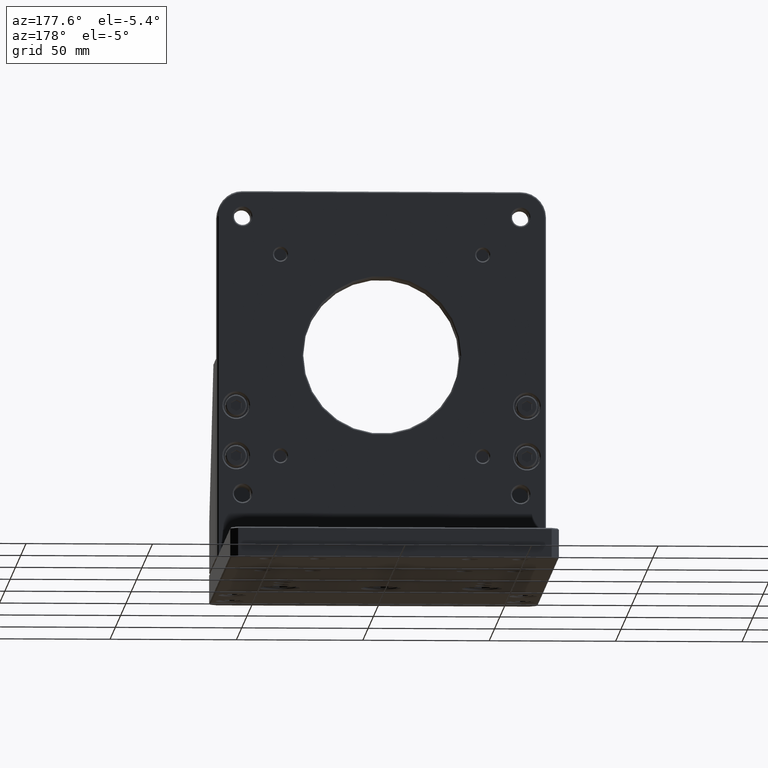
[diagram: clean part render]
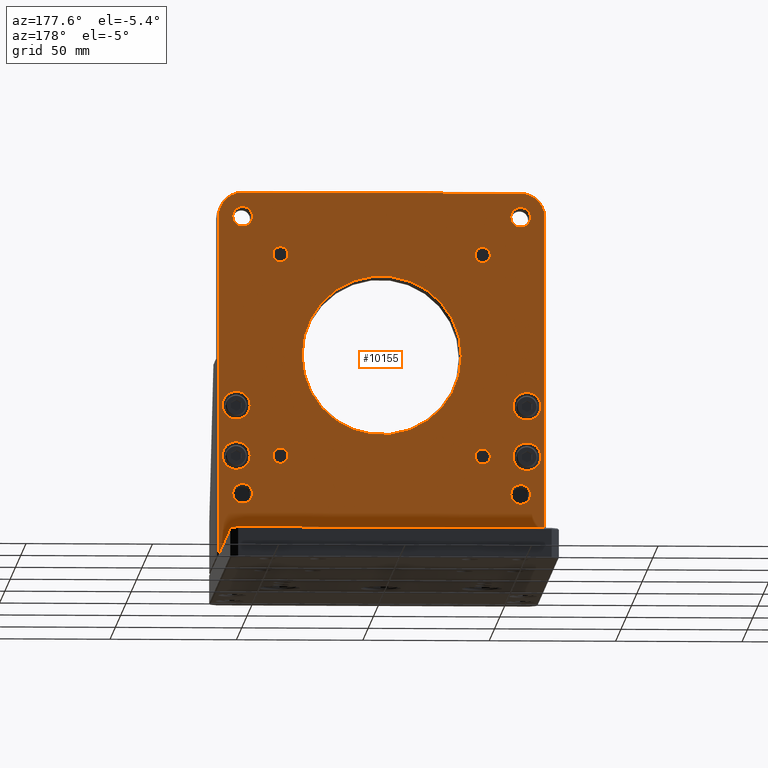
[diagram: same view with one face highlighted and labeled with its STEP entity id]
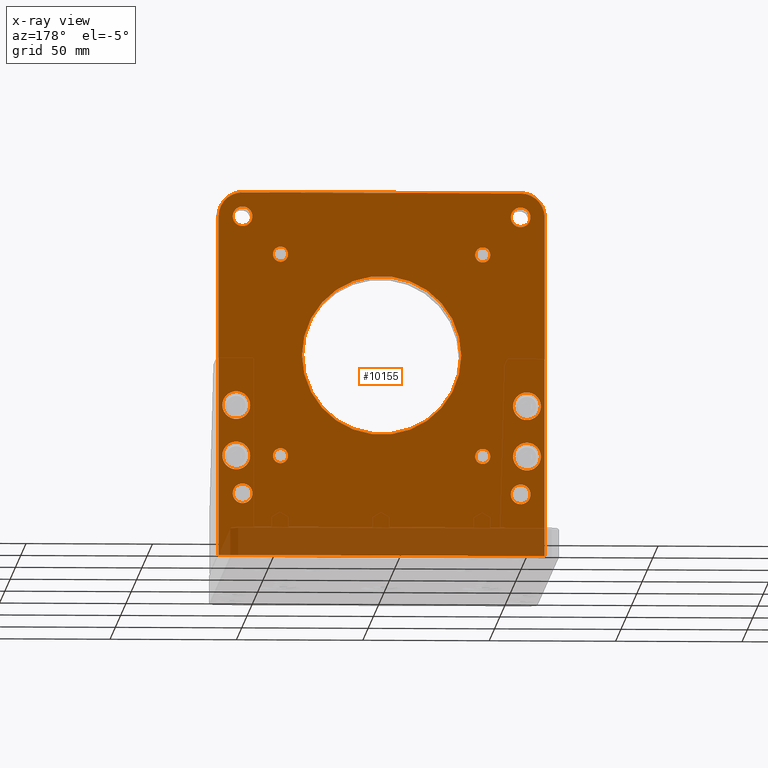
[diagram: x-ray of the same camera — body ghosted, the highlighted face saturated]
A machine part, auxiliary view. The second image highlights one B-rep face of the part: STEP entity #10155.
The next image is the same camera in x-ray: the body ghosted, the highlighted face saturated — about 10% of this face is hidden behind the body in this view.
In plain terms, the highlighted planar face has unit normal (0, -1, 0).
Its self-contained STEP definition (entity closure, byte-faithful):
#114 = FACE_BOUND ( 'NONE', #1489, .T. ) ;
#166 = EDGE_CURVE ( 'NONE', #2666, #1844, #4543, .T. ) ;
#218 = CIRCLE ( 'NONE', #11926, 3.899999999999979927 ) ;
#365 = CARTESIAN_POINT ( 'NONE',  ( 42.99999999999942446, -22.49999999999949551, 52.00000000000067502 ) ) ;
#384 = FACE_BOUND ( 'NONE', #13926, .T. ) ;
#388 = CARTESIAN_POINT ( 'NONE',  ( 57.49999999999913314, -22.49999999999932498, 72.00000000000088107 ) ) ;
#520 = CARTESIAN_POINT ( 'NONE',  ( 64.49999999999805311, -22.49999999999901235, 147.0000000000009663 ) ) ;
#588 = VERTEX_POINT ( 'NONE', #16888 ) ;
#654 = DIRECTION ( 'NONE',  ( 6.982962677686217801E-15, -1.000000000000000000, 3.491481338843133355E-15 ) ) ;
#666 = CARTESIAN_POINT ( 'NONE',  ( 39.99999999999828759, -22.49999999999923617, 132.0000000000006537 ) ) ;
#762 = AXIS2_PLACEMENT_3D ( 'NONE', #14537, #9334, #10507 ) ;
#804 = EDGE_LOOP ( 'NONE', ( #7208, #6903 ) ) ;
#851 = DIRECTION ( 'NONE',  ( 6.982962677686217801E-15, -1.000000000000000000, 3.491481338843133355E-15 ) ) ;
#1033 = ORIENTED_EDGE ( 'NONE', *, *, #3305, .T. ) ;
#1138 = CIRCLE ( 'NONE', #1727, 3.000000000000030198 ) ;
#1199 = AXIS2_PLACEMENT_3D ( 'NONE', #13154, #654, #8868 ) ;
#1227 = VERTEX_POINT ( 'NONE', #4390 ) ;
#1380 = FACE_BOUND ( 'NONE', #3524, .T. ) ;
#1383 = CARTESIAN_POINT ( 'NONE',  ( -64.50000000000100897, -22.50000000000013500, 84.49999999999918998 ) ) ;
#1423 = CARTESIAN_POINT ( 'NONE',  ( 58.89999999999813696, -22.49999999999905498, 147.0000000000009095 ) ) ;
#1489 = EDGE_LOOP ( 'NONE', ( #6241, #8145 ) ) ;
#1508 = LINE ( 'NONE', #9556, #4870 ) ;
#1654 = EDGE_CURVE ( 'NONE', #13224, #16976, #15458, .T. ) ;
#1727 = AXIS2_PLACEMENT_3D ( 'NONE', #16619, #3111, #4364 ) ;
#1797 = CARTESIAN_POINT ( 'NONE',  ( 51.09999999999965326, -22.49999999999949196, 37.00000000000078160 ) ) ;
#1835 = DIRECTION ( 'NONE',  ( 6.982962677686217801E-15, -1.000000000000000000, 3.491481338843133355E-15 ) ) ;
#1844 = VERTEX_POINT ( 'NONE', #2055 ) ;
#1899 = DIRECTION ( 'NONE',  ( 6.982962677686217801E-15, -1.000000000000000000, 3.491481338843133355E-15 ) ) ;
#1954 = CARTESIAN_POINT ( 'NONE',  ( 36.99999999999825917, -22.49999999999925748, 132.0000000000005969 ) ) ;
#2030 = CARTESIAN_POINT ( 'NONE',  ( 54.99999999999808864, -22.49999999999908340, 147.0000000000008242 ) ) ;
#2055 = CARTESIAN_POINT ( 'NONE',  ( -52.00000000000055422, -22.50000000000016342, 51.99999999999935341 ) ) ;
#2093 = DIRECTION ( 'NONE',  ( 1.000000000000000000, 6.938893903907228378E-15, 1.409807015397024218E-14 ) ) ;
#2113 = CARTESIAN_POINT ( 'NONE',  ( -55.00000000000191136, -22.49999999999985079, 146.9999999999992895 ) ) ;
#2161 = CARTESIAN_POINT ( 'NONE',  ( -1.145495027637149810E-12, -22.49999999999965894, 92.00000000000008527 ) ) ;
#2192 = CARTESIAN_POINT ( 'NONE',  ( -51.10000000000186304, -22.49999999999982236, 146.9999999999993747 ) ) ;
#2269 = DIRECTION ( 'NONE',  ( 6.982962677686217801E-15, -1.000000000000000000, 3.491481338843133355E-15 ) ) ;
#2288 = DIRECTION ( 'NONE',  ( -6.982962677686217801E-15, 1.000000000000000000, -3.491481338843133355E-15 ) ) ;
#2291 = CARTESIAN_POINT ( 'NONE',  ( 62.99999999999944578, -22.49999999999935696, 52.00000000000095923 ) ) ;
#2467 = DIRECTION ( 'NONE',  ( 6.982962677686217801E-15, -1.000000000000000000, 3.491481338843133355E-15 ) ) ;
#2601 = ORIENTED_EDGE ( 'NONE', *, *, #17238, .T. ) ;
#2666 = VERTEX_POINT ( 'NONE', #3106 ) ;
#2735 = VERTEX_POINT ( 'NONE', #7480 ) ;
#2786 = ORIENTED_EDGE ( 'NONE', *, *, #9286, .T. ) ;
#2816 = PLANE ( 'NONE',  #6758 ) ;
#2818 = AXIS2_PLACEMENT_3D ( 'NONE', #6804, #17385, #7972 ) ;
#2830 = AXIS2_PLACEMENT_3D ( 'NONE', #2030, #2288, #15953 ) ;
#2848 = CARTESIAN_POINT ( 'NONE',  ( 54.99999999999811706, -22.49999999999908340, 147.0000000000008527 ) ) ;
#2849 = EDGE_CURVE ( 'NONE', #2735, #3883, #11819, .T. ) ;
#2862 = CIRCLE ( 'NONE', #17152, 31.50000000000000000 ) ;
#2865 = CIRCLE ( 'NONE', #11710, 5.500000000000032863 ) ;
#2914 = DIRECTION ( 'NONE',  ( 6.982962677686217801E-15, -1.000000000000000000, 3.491481338843133355E-15 ) ) ;
#2950 = EDGE_CURVE ( 'NONE', #9595, #13612, #14230, .T. ) ;
#2989 = ORIENTED_EDGE ( 'NONE', *, *, #6050, .T. ) ;
#3083 = DIRECTION ( 'NONE',  ( 1.000000000000000000, 6.938893903907158169E-15, 1.387778780781431634E-14 ) ) ;
#3106 = CARTESIAN_POINT ( 'NONE',  ( -63.00000000000062528, -22.50000000000023803, 51.99999999999919709 ) ) ;
#3111 = DIRECTION ( 'NONE',  ( 6.982962677686217801E-15, -1.000000000000000000, 3.491481338843133355E-15 ) ) ;
#3169 = AXIS2_PLACEMENT_3D ( 'NONE', #11203, #16675, #3083 ) ;
#3238 = EDGE_LOOP ( 'NONE', ( #16460, #9053, #10615, #10747, #15604, #3388 ) ) ;
#3305 = EDGE_CURVE ( 'NONE', #17536, #12856, #13662, .T. ) ;
#3388 = ORIENTED_EDGE ( 'NONE', *, *, #15014, .T. ) ;
#3495 = EDGE_CURVE ( 'NONE', #14064, #11530, #9659, .T. ) ;
#3524 = EDGE_LOOP ( 'NONE', ( #5831, #1033 ) ) ;
#3591 = EDGE_CURVE ( 'NONE', #11889, #6823, #9101, .T. ) ;
#3663 = DIRECTION ( 'NONE',  ( 1.000000000000000000, 6.938893903907186568E-15, 1.387778780781437314E-14 ) ) ;
#3730 = EDGE_CURVE ( 'NONE', #7294, #14353, #8494, .T. ) ;
#3883 = VERTEX_POINT ( 'NONE', #1954 ) ;
#3889 = CARTESIAN_POINT ( 'NONE',  ( 51.09999999999809717, -22.49999999999911182, 147.0000000000007958 ) ) ;
#3918 = AXIS2_PLACEMENT_3D ( 'NONE', #5985, #11246, #15285 ) ;
#3965 = ORIENTED_EDGE ( 'NONE', *, *, #166, .T. ) ;
#4105 = VERTEX_POINT ( 'NONE', #5328 ) ;
#4240 = CIRCLE ( 'NONE', #7381, 3.000000000000030198 ) ;
#4242 = LINE ( 'NONE', #1383, #6618 ) ;
#4269 = AXIS2_PLACEMENT_3D ( 'NONE', #5364, #17704, #6784 ) ;
#4333 = FACE_BOUND ( 'NONE', #15704, .T. ) ;
#4364 = DIRECTION ( 'NONE',  ( 1.000000000000000000, 6.938893903907158169E-15, 1.850371707708575512E-14 ) ) ;
#4390 = CARTESIAN_POINT ( 'NONE',  ( -43.00000000000062528, -22.50000000000009592, 51.99999999999947420 ) ) ;
#4428 = CARTESIAN_POINT ( 'NONE',  ( 54.99999999999964473, -22.49999999999946354, 37.00000000000083844 ) ) ;
#4543 = CIRCLE ( 'NONE', #6246, 5.500000000000032863 ) ;
#4725 = EDGE_LOOP ( 'NONE', ( #15612, #6195 ) ) ;
#4771 = CARTESIAN_POINT ( 'NONE',  ( -52.00000000000084555, -22.50000000000009237, 71.99999999999936051 ) ) ;
#4777 = DIRECTION ( 'NONE',  ( 1.000000000000000000, 7.116814260417643269E-15, 1.423362852083528654E-14 ) ) ;
#4870 = VECTOR ( 'NONE', #6950, 1000.000000000000000 ) ;
#5125 = DIRECTION ( 'NONE',  ( 6.982962677686217801E-15, -1.000000000000000000, 3.491481338843133355E-15 ) ) ;
#5131 = CIRCLE ( 'NONE', #4269, 3.899999999999987033 ) ;
#5158 = CIRCLE ( 'NONE', #3169, 3.000000000000030198 ) ;
#5328 = CARTESIAN_POINT ( 'NONE',  ( -43.00000000000174794, -22.49999999999981881, 131.9999999999994884 ) ) ;
#5344 = DIRECTION ( 'NONE',  ( 1.000000000000000000, 6.982962677686266711E-15, 1.396592535537253342E-14 ) ) ;
#5364 = CARTESIAN_POINT ( 'NONE',  ( 54.99999999999964473, -22.49999999999946354, 37.00000000000083844 ) ) ;
#5391 = AXIS2_PLACEMENT_3D ( 'NONE', #11005, #5740, #16471 ) ;
#5413 = DIRECTION ( 'NONE',  ( 1.000000000000000000, 6.938893903907158169E-15, 1.850371707708575512E-14 ) ) ;
#5545 = EDGE_LOOP ( 'NONE', ( #17649, #2989 ) ) ;
#5671 = DIRECTION ( 'NONE',  ( 1.000000000000000000, 6.938893903907186568E-15, 1.513940488125204428E-14 ) ) ;
#5698 = CARTESIAN_POINT ( 'NONE',  ( -37.00000000000168399, -22.49999999999977618, 131.9999999999996021 ) ) ;
#5719 = AXIS2_PLACEMENT_3D ( 'NONE', #8087, #2467, #8164 ) ;
#5740 = DIRECTION ( 'NONE',  ( 6.982962677686217801E-15, -1.000000000000000000, 3.491481338843133355E-15 ) ) ;
#5824 = DIRECTION ( 'NONE',  ( 1.000000000000000000, 6.938893903907186568E-15, 1.513940488125204428E-14 ) ) ;
#5831 = ORIENTED_EDGE ( 'NONE', *, *, #7278, .T. ) ;
#5942 = AXIS2_PLACEMENT_3D ( 'NONE', #4428, #8436, #7282 ) ;
#5985 = CARTESIAN_POINT ( 'NONE',  ( -55.00000000000034817, -22.50000000000023448, 36.99999999999931788 ) ) ;
#6014 = CIRCLE ( 'NONE', #10290, 5.500000000000039968 ) ;
#6050 = EDGE_CURVE ( 'NONE', #12757, #1227, #7485, .T. ) ;
#6124 = DIRECTION ( 'NONE',  ( 1.000000000000000000, 6.938893903907158169E-15, 1.850371707708575512E-14 ) ) ;
#6195 = ORIENTED_EDGE ( 'NONE', *, *, #16661, .T. ) ;
#6241 = ORIENTED_EDGE ( 'NONE', *, *, #10972, .T. ) ;
#6246 = AXIS2_PLACEMENT_3D ( 'NONE', #14220, #10283, #3663 ) ;
#6324 = CARTESIAN_POINT ( 'NONE',  ( 57.49999999999940314, -22.49999999999939604, 52.00000000000088818 ) ) ;
#6338 = DIRECTION ( 'NONE',  ( 6.982962677686217801E-15, -1.000000000000000000, 3.491481338843133355E-15 ) ) ;
#6446 = CARTESIAN_POINT ( 'NONE',  ( 54.99999999999811706, -22.49999999999908340, 147.0000000000008527 ) ) ;
#6548 = ORIENTED_EDGE ( 'NONE', *, *, #8627, .T. ) ;
#6575 = AXIS2_PLACEMENT_3D ( 'NONE', #2113, #11738, #7547 ) ;
#6583 = DIRECTION ( 'NONE',  ( 6.982962677686217801E-15, -1.000000000000000000, 3.491481338843133355E-15 ) ) ;
#6586 = ORIENTED_EDGE ( 'NONE', *, *, #8245, .T. ) ;
#6618 = VECTOR ( 'NONE', #9604, 1000.000000000000000 ) ;
#6701 = VERTEX_POINT ( 'NONE', #365 ) ;
#6758 = AXIS2_PLACEMENT_3D ( 'NONE', #8256, #6915, #15595 ) ;
#6784 = DIRECTION ( 'NONE',  ( 1.000000000000000000, 7.116814260417693756E-15, 1.423362852083538751E-14 ) ) ;
#6804 = CARTESIAN_POINT ( 'NONE',  ( -57.50000000000086686, -22.50000000000013145, 71.99999999999927525 ) ) ;
#6823 = VERTEX_POINT ( 'NONE', #8858 ) ;
#6825 = FACE_BOUND ( 'NONE', #11791, .T. ) ;
#6903 = ORIENTED_EDGE ( 'NONE', *, *, #7403, .T. ) ;
#6915 = DIRECTION ( 'NONE',  ( 6.982962677686217801E-15, -1.000000000000000000, 3.491481338843133355E-15 ) ) ;
#6950 = DIRECTION ( 'NONE',  ( -1.000000000000000000, -6.982962677686266711E-15, -1.396592535537253342E-14 ) ) ;
#7048 = VECTOR ( 'NONE', #5344, 1000.000000000000000 ) ;
#7183 = FACE_BOUND ( 'NONE', #4725, .T. ) ;
#7208 = ORIENTED_EDGE ( 'NONE', *, *, #16961, .T. ) ;
#7249 = CARTESIAN_POINT ( 'NONE',  ( 64.49999999999992895, -22.49999999999948486, 12.50000000000101075 ) ) ;
#7275 = CARTESIAN_POINT ( 'NONE',  ( 36.99999999999936762, -22.49999999999953815, 52.00000000000059686 ) ) ;
#7276 = DIRECTION ( 'NONE',  ( 1.000000000000000000, 6.938893903907158169E-15, 1.387778780781431634E-14 ) ) ;
#7278 = EDGE_CURVE ( 'NONE', #12856, #17536, #12003, .T. ) ;
#7282 = DIRECTION ( 'NONE',  ( 1.000000000000000000, 7.116814260417693756E-15, 1.423362852083538751E-14 ) ) ;
#7294 = VERTEX_POINT ( 'NONE', #3889 ) ;
#7381 = AXIS2_PLACEMENT_3D ( 'NONE', #9135, #5125, #14685 ) ;
#7403 = EDGE_CURVE ( 'NONE', #12037, #588, #7998, .T. ) ;
#7480 = CARTESIAN_POINT ( 'NONE',  ( 42.99999999999831601, -22.49999999999921485, 132.0000000000007105 ) ) ;
#7485 = CIRCLE ( 'NONE', #1199, 3.000000000000030198 ) ;
#7518 = EDGE_CURVE ( 'NONE', #1227, #12757, #5158, .T. ) ;
#7547 = DIRECTION ( 'NONE',  ( 1.000000000000000000, 6.938893903907248099E-15, 1.460819769243630996E-14 ) ) ;
#7565 = EDGE_CURVE ( 'NONE', #3883, #2735, #11988, .T. ) ;
#7606 = EDGE_CURVE ( 'NONE', #17163, #9315, #8002, .T. ) ;
#7622 = AXIS2_PLACEMENT_3D ( 'NONE', #14072, #1835, #7276 ) ;
#7673 = VERTEX_POINT ( 'NONE', #14690 ) ;
#7699 = DIRECTION ( 'NONE',  ( 6.982962677686217801E-15, -1.000000000000000000, 3.491481338843133355E-15 ) ) ;
#7754 = DIRECTION ( 'NONE',  ( 1.000000000000000000, 6.938893903907177891E-15, 1.387778780781435578E-14 ) ) ;
#7783 = CARTESIAN_POINT ( 'NONE',  ( -40.00000000000171241, -22.49999999999979750, 131.9999999999995453 ) ) ;
#7955 = CIRCLE ( 'NONE', #2830, 9.499999999999973355 ) ;
#7972 = DIRECTION ( 'NONE',  ( 1.000000000000000000, 6.938893903907196034E-15, 1.513940488125206321E-14 ) ) ;
#7998 = CIRCLE ( 'NONE', #15442, 5.500000000000032863 ) ;
#8002 = CIRCLE ( 'NONE', #6575, 9.499999999999973355 ) ;
#8087 = CARTESIAN_POINT ( 'NONE',  ( -57.50000000000086686, -22.50000000000013145, 71.99999999999927525 ) ) ;
#8138 = VERTEX_POINT ( 'NONE', #15839 ) ;
#8145 = ORIENTED_EDGE ( 'NONE', *, *, #11613, .T. ) ;
#8162 = FACE_OUTER_BOUND ( 'NONE', #3238, .T. ) ;
#8164 = DIRECTION ( 'NONE',  ( 1.000000000000000000, 6.938893903907196034E-15, 1.513940488125206321E-14 ) ) ;
#8172 = CIRCLE ( 'NONE', #762, 5.500000000000032863 ) ;
#8245 = EDGE_CURVE ( 'NONE', #13612, #9595, #5131, .T. ) ;
#8256 = CARTESIAN_POINT ( 'NONE',  ( -1.041362910871429384E-12, -22.49999999999968381, 84.50000000000008527 ) ) ;
#8432 = FACE_BOUND ( 'NONE', #11349, .T. ) ;
#8436 = DIRECTION ( 'NONE',  ( 6.982962677686217801E-15, -1.000000000000000000, 3.491481338843133355E-15 ) ) ;
#8487 = EDGE_LOOP ( 'NONE', ( #9682, #10106 ) ) ;
#8489 = EDGE_CURVE ( 'NONE', #6823, #11889, #2862, .T. ) ;
#8494 = CIRCLE ( 'NONE', #12209, 3.900000000000014566 ) ;
#8499 = CARTESIAN_POINT ( 'NONE',  ( -63.00000000000088818, -22.50000000000017053, 71.99999999999920419 ) ) ;
#8627 = EDGE_CURVE ( 'NONE', #7673, #16352, #6014, .T. ) ;
#8649 = CARTESIAN_POINT ( 'NONE',  ( -64.50000000000001421, -22.50000000000038725, 12.49999999999920597 ) ) ;
#8665 = EDGE_LOOP ( 'NONE', ( #2786, #2601 ) ) ;
#8858 = CARTESIAN_POINT ( 'NONE',  ( 31.49999999999885603, -22.49999999999944222, 92.00000000000052580 ) ) ;
#8868 = DIRECTION ( 'NONE',  ( 1.000000000000000000, 6.938893903907158169E-15, 1.387778780781431634E-14 ) ) ;
#8885 = VERTEX_POINT ( 'NONE', #13111 ) ;
#9053 = ORIENTED_EDGE ( 'NONE', *, *, #15724, .T. ) ;
#9101 = CIRCLE ( 'NONE', #14247, 31.50000000000000000 ) ;
#9102 = DIRECTION ( 'NONE',  ( 1.000000000000000000, 6.938893903907228378E-15, 1.409807015397024218E-14 ) ) ;
#9135 = CARTESIAN_POINT ( 'NONE',  ( 39.99999999999939604, -22.49999999999951683, 52.00000000000063949 ) ) ;
#9169 = ORIENTED_EDGE ( 'NONE', *, *, #7565, .T. ) ;
#9274 = CARTESIAN_POINT ( 'NONE',  ( -2.046909536458252801E-12, -22.49999999999943157, 156.5000000000000284 ) ) ;
#9276 = ORIENTED_EDGE ( 'NONE', *, *, #13779, .T. ) ;
#9286 = EDGE_CURVE ( 'NONE', #4105, #17224, #15175, .T. ) ;
#9294 = DIRECTION ( 'NONE',  ( 1.000000000000000000, 6.938893903907158169E-15, 1.850371707708575512E-14 ) ) ;
#9315 = VERTEX_POINT ( 'NONE', #12151 ) ;
#9334 = DIRECTION ( 'NONE',  ( 6.982962677686217801E-15, -1.000000000000000000, 3.491481338843133355E-15 ) ) ;
#9414 = CIRCLE ( 'NONE', #13404, 3.900000000000014566 ) ;
#9431 = CIRCLE ( 'NONE', #16864, 5.500000000000039968 ) ;
#9458 = DIRECTION ( 'NONE',  ( 6.982962677686217801E-15, -1.000000000000000000, 3.491481338843133355E-15 ) ) ;
#9556 = CARTESIAN_POINT ( 'NONE',  ( -3.581628528460537521E-14, -22.49999999999993605, 12.50000000000010836 ) ) ;
#9595 = VERTEX_POINT ( 'NONE', #1797 ) ;
#9604 = DIRECTION ( 'NONE',  ( -1.396592535537255866E-14, 3.491481338843035537E-15, 1.000000000000000000 ) ) ;
#9659 = CIRCLE ( 'NONE', #5391, 3.900000000000014566 ) ;
#9682 = ORIENTED_EDGE ( 'NONE', *, *, #11502, .T. ) ;
#9914 = ORIENTED_EDGE ( 'NONE', *, *, #8489, .T. ) ;
#9974 = EDGE_CURVE ( 'NONE', #1844, #2666, #8172, .T. ) ;
#10106 = ORIENTED_EDGE ( 'NONE', *, *, #10256, .T. ) ;
#10155 = ADVANCED_FACE ( 'NONE', ( #8432, #4333, #8162, #13888, #114, #7183, #16320, #13625, #12276, #12636, #384, #1380, #6825, #15057 ), #2816, .F. ) ;
#10200 = CARTESIAN_POINT ( 'NONE',  ( -58.90000000000190283, -22.49999999999987921, 146.9999999999992610 ) ) ;
#10246 = CARTESIAN_POINT ( 'NONE',  ( -55.00000000000034817, -22.50000000000023448, 36.99999999999931788 ) ) ;
#10256 = EDGE_CURVE ( 'NONE', #6701, #11323, #17619, .T. ) ;
#10283 = DIRECTION ( 'NONE',  ( 6.982962677686217801E-15, -1.000000000000000000, 3.491481338843133355E-15 ) ) ;
#10290 = AXIS2_PLACEMENT_3D ( 'NONE', #17176, #6338, #14738 ) ;
#10394 = VERTEX_POINT ( 'NONE', #15856 ) ;
#10405 = DIRECTION ( 'NONE',  ( 6.982962677686217801E-15, -1.000000000000000000, 3.491481338843133355E-15 ) ) ;
#10507 = DIRECTION ( 'NONE',  ( 1.000000000000000000, 6.938893903907186568E-15, 1.387778780781437314E-14 ) ) ;
#10615 = ORIENTED_EDGE ( 'NONE', *, *, #12410, .T. ) ;
#10716 = EDGE_LOOP ( 'NONE', ( #9169, #16930 ) ) ;
#10747 = ORIENTED_EDGE ( 'NONE', *, *, #7606, .T. ) ;
#10879 = CARTESIAN_POINT ( 'NONE',  ( -31.50000000000113687, -22.49999999999987921, 91.99999999999964473 ) ) ;
#10972 = EDGE_CURVE ( 'NONE', #8885, #10394, #218, .T. ) ;
#11005 = CARTESIAN_POINT ( 'NONE',  ( -55.00000000000188294, -22.49999999999985079, 146.9999999999993179 ) ) ;
#11034 = VECTOR ( 'NONE', #12673, 1000.000000000000000 ) ;
#11134 = AXIS2_PLACEMENT_3D ( 'NONE', #666, #10405, #6124 ) ;
#11203 = CARTESIAN_POINT ( 'NONE',  ( -40.00000000000059686, -22.50000000000007461, 51.99999999999951683 ) ) ;
#11246 = DIRECTION ( 'NONE',  ( 6.982962677686217801E-15, -1.000000000000000000, 3.491481338843133355E-15 ) ) ;
#11323 = VERTEX_POINT ( 'NONE', #7275 ) ;
#11349 = EDGE_LOOP ( 'NONE', ( #15343, #9276 ) ) ;
#11350 = CARTESIAN_POINT ( 'NONE',  ( 57.49999999999913314, -22.49999999999932498, 72.00000000000088107 ) ) ;
#11502 = EDGE_CURVE ( 'NONE', #11323, #6701, #4240, .T. ) ;
#11530 = VERTEX_POINT ( 'NONE', #2192 ) ;
#11613 = EDGE_CURVE ( 'NONE', #10394, #8885, #16197, .T. ) ;
#11710 = AXIS2_PLACEMENT_3D ( 'NONE', #11350, #1899, #5824 ) ;
#11738 = DIRECTION ( 'NONE',  ( -6.982962677686217801E-15, 1.000000000000000000, -3.491481338843133355E-15 ) ) ;
#11791 = EDGE_LOOP ( 'NONE', ( #6548, #15956 ) ) ;
#11806 = CIRCLE ( 'NONE', #12672, 3.900000000000014566 ) ;
#11819 = CIRCLE ( 'NONE', #13242, 3.000000000000030198 ) ;
#11883 = EDGE_CURVE ( 'NONE', #9315, #8138, #12130, .T. ) ;
#11889 = VERTEX_POINT ( 'NONE', #10879 ) ;
#11900 = CARTESIAN_POINT ( 'NONE',  ( -37.00000000000056843, -22.50000000000005329, 51.99999999999955946 ) ) ;
#11926 = AXIS2_PLACEMENT_3D ( 'NONE', #10246, #851, #16779 ) ;
#11988 = CIRCLE ( 'NONE', #11134, 3.000000000000030198 ) ;
#12003 = CIRCLE ( 'NONE', #5719, 5.500000000000025757 ) ;
#12025 = CARTESIAN_POINT ( 'NONE',  ( 39.99999999999828759, -22.49999999999923617, 132.0000000000006537 ) ) ;
#12037 = VERTEX_POINT ( 'NONE', #16695 ) ;
#12130 = LINE ( 'NONE', #9274, #7048 ) ;
#12151 = CARTESIAN_POINT ( 'NONE',  ( -55.00000000000203926, -22.49999999999981526, 156.4999999999992895 ) ) ;
#12209 = AXIS2_PLACEMENT_3D ( 'NONE', #2848, #9458, #14921 ) ;
#12276 = FACE_BOUND ( 'NONE', #5545, .T. ) ;
#12315 = CARTESIAN_POINT ( 'NONE',  ( 64.49999999999893419, -22.49999999999923261, 84.50000000000099476 ) ) ;
#12410 = EDGE_CURVE ( 'NONE', #14594, #17163, #4242, .T. ) ;
#12484 = CARTESIAN_POINT ( 'NONE',  ( -64.50000000000189004, -22.49999999999991473, 146.9999999999991473 ) ) ;
#12636 = FACE_BOUND ( 'NONE', #10716, .T. ) ;
#12672 = AXIS2_PLACEMENT_3D ( 'NONE', #16293, #13597, #16198 ) ;
#12673 = DIRECTION ( 'NONE',  ( 1.396592535537255866E-14, -3.491481338843035537E-15, -1.000000000000000000 ) ) ;
#12687 = EDGE_LOOP ( 'NONE', ( #15622, #6586 ) ) ;
#12757 = VERTEX_POINT ( 'NONE', #11900 ) ;
#12856 = VERTEX_POINT ( 'NONE', #8499 ) ;
#13111 = CARTESIAN_POINT ( 'NONE',  ( -58.90000000000032543, -22.50000000000026290, 36.99999999999926104 ) ) ;
#13154 = CARTESIAN_POINT ( 'NONE',  ( -40.00000000000059686, -22.50000000000007461, 51.99999999999951683 ) ) ;
#13224 = VERTEX_POINT ( 'NONE', #520 ) ;
#13242 = AXIS2_PLACEMENT_3D ( 'NONE', #12025, #16414, #5413 ) ;
#13305 = DIRECTION ( 'NONE',  ( 6.982962677686217801E-15, -1.000000000000000000, 3.491481338843133355E-15 ) ) ;
#13404 = AXIS2_PLACEMENT_3D ( 'NONE', #6446, #2269, #4777 ) ;
#13597 = DIRECTION ( 'NONE',  ( 6.982962677686217801E-15, -1.000000000000000000, 3.491481338843133355E-15 ) ) ;
#13612 = VERTEX_POINT ( 'NONE', #14093 ) ;
#13625 = FACE_BOUND ( 'NONE', #8487, .T. ) ;
#13662 = CIRCLE ( 'NONE', #2818, 5.500000000000025757 ) ;
#13779 = EDGE_CURVE ( 'NONE', #11530, #14064, #11806, .T. ) ;
#13888 = FACE_BOUND ( 'NONE', #12687, .T. ) ;
#13926 = EDGE_LOOP ( 'NONE', ( #3965, #14793 ) ) ;
#14064 = VERTEX_POINT ( 'NONE', #10200 ) ;
#14072 = CARTESIAN_POINT ( 'NONE',  ( 39.99999999999939604, -22.49999999999951683, 52.00000000000063949 ) ) ;
#14093 = CARTESIAN_POINT ( 'NONE',  ( 58.89999999999963620, -22.49999999999943867, 37.00000000000089528 ) ) ;
#14220 = CARTESIAN_POINT ( 'NONE',  ( -57.50000000000058265, -22.50000000000019895, 51.99999999999927525 ) ) ;
#14230 = CIRCLE ( 'NONE', #5942, 3.899999999999987033 ) ;
#14247 = AXIS2_PLACEMENT_3D ( 'NONE', #15580, #13305, #2093 ) ;
#14353 = VERTEX_POINT ( 'NONE', #1423 ) ;
#14537 = CARTESIAN_POINT ( 'NONE',  ( -57.50000000000058265, -22.50000000000019895, 51.99999999999927525 ) ) ;
#14594 = VERTEX_POINT ( 'NONE', #8649 ) ;
#14685 = DIRECTION ( 'NONE',  ( 1.000000000000000000, 6.938893903907158169E-15, 1.387778780781431634E-14 ) ) ;
#14690 = CARTESIAN_POINT ( 'NONE',  ( 51.99999999999936762, -22.49999999999943512, 52.00000000000081002 ) ) ;
#14738 = DIRECTION ( 'NONE',  ( 1.000000000000000000, 6.938893903907177891E-15, 1.387778780781435578E-14 ) ) ;
#14793 = ORIENTED_EDGE ( 'NONE', *, *, #9974, .T. ) ;
#14921 = DIRECTION ( 'NONE',  ( 1.000000000000000000, 7.116814260417643269E-15, 1.423362852083528654E-14 ) ) ;
#15014 = EDGE_CURVE ( 'NONE', #8138, #13224, #7955, .T. ) ;
#15057 = FACE_BOUND ( 'NONE', #804, .T. ) ;
#15175 = CIRCLE ( 'NONE', #16595, 3.000000000000030198 ) ;
#15285 = DIRECTION ( 'NONE',  ( 1.000000000000000000, 7.116814260417706378E-15, 1.423362852083541276E-14 ) ) ;
#15343 = ORIENTED_EDGE ( 'NONE', *, *, #3495, .T. ) ;
#15442 = AXIS2_PLACEMENT_3D ( 'NONE', #388, #2914, #5671 ) ;
#15458 = LINE ( 'NONE', #12315, #11034 ) ;
#15580 = CARTESIAN_POINT ( 'NONE',  ( -1.145495027637149810E-12, -22.49999999999965894, 92.00000000000008527 ) ) ;
#15595 = DIRECTION ( 'NONE',  ( 1.000000000000000000, 6.982962677686266711E-15, 1.396592535537253342E-14 ) ) ;
#15604 = ORIENTED_EDGE ( 'NONE', *, *, #11883, .T. ) ;
#15612 = ORIENTED_EDGE ( 'NONE', *, *, #3730, .T. ) ;
#15622 = ORIENTED_EDGE ( 'NONE', *, *, #2950, .T. ) ;
#15704 = EDGE_LOOP ( 'NONE', ( #17066, #9914 ) ) ;
#15724 = EDGE_CURVE ( 'NONE', #16976, #14594, #1508, .T. ) ;
#15839 = CARTESIAN_POINT ( 'NONE',  ( 54.99999999999795364, -22.49999999999904787, 156.5000000000007958 ) ) ;
#15856 = CARTESIAN_POINT ( 'NONE',  ( -51.10000000000037090, -22.50000000000020606, 36.99999999999937472 ) ) ;
#15925 = EDGE_CURVE ( 'NONE', #16352, #7673, #9431, .T. ) ;
#15953 = DIRECTION ( 'NONE',  ( 1.000000000000000000, 6.938893903907248099E-15, 1.168655815394904860E-14 ) ) ;
#15956 = ORIENTED_EDGE ( 'NONE', *, *, #15925, .T. ) ;
#16171 = DIRECTION ( 'NONE',  ( 6.982962677686217801E-15, -1.000000000000000000, 3.491481338843133355E-15 ) ) ;
#16197 = CIRCLE ( 'NONE', #3918, 3.899999999999979927 ) ;
#16198 = DIRECTION ( 'NONE',  ( 1.000000000000000000, 7.116814260417643269E-15, 1.423362852083528654E-14 ) ) ;
#16293 = CARTESIAN_POINT ( 'NONE',  ( -55.00000000000188294, -22.49999999999985079, 146.9999999999993179 ) ) ;
#16320 = FACE_BOUND ( 'NONE', #8665, .T. ) ;
#16352 = VERTEX_POINT ( 'NONE', #2291 ) ;
#16414 = DIRECTION ( 'NONE',  ( 6.982962677686217801E-15, -1.000000000000000000, 3.491481338843133355E-15 ) ) ;
#16460 = ORIENTED_EDGE ( 'NONE', *, *, #1654, .T. ) ;
#16471 = DIRECTION ( 'NONE',  ( 1.000000000000000000, 7.116814260417643269E-15, 1.423362852083528654E-14 ) ) ;
#16595 = AXIS2_PLACEMENT_3D ( 'NONE', #7783, #7699, #9294 ) ;
#16619 = CARTESIAN_POINT ( 'NONE',  ( -40.00000000000171241, -22.49999999999979750, 131.9999999999995453 ) ) ;
#16661 = EDGE_CURVE ( 'NONE', #14353, #7294, #9414, .T. ) ;
#16675 = DIRECTION ( 'NONE',  ( 6.982962677686217801E-15, -1.000000000000000000, 3.491481338843133355E-15 ) ) ;
#16695 = CARTESIAN_POINT ( 'NONE',  ( 62.99999999999915445, -22.49999999999928946, 72.00000000000095213 ) ) ;
#16779 = DIRECTION ( 'NONE',  ( 1.000000000000000000, 7.116814260417706378E-15, 1.423362852083541276E-14 ) ) ;
#16864 = AXIS2_PLACEMENT_3D ( 'NONE', #6324, #6583, #7754 ) ;
#16888 = CARTESIAN_POINT ( 'NONE',  ( 51.99999999999910472, -22.49999999999936406, 72.00000000000079581 ) ) ;
#16930 = ORIENTED_EDGE ( 'NONE', *, *, #2849, .T. ) ;
#16961 = EDGE_CURVE ( 'NONE', #588, #12037, #2865, .T. ) ;
#16976 = VERTEX_POINT ( 'NONE', #7249 ) ;
#17066 = ORIENTED_EDGE ( 'NONE', *, *, #3591, .T. ) ;
#17152 = AXIS2_PLACEMENT_3D ( 'NONE', #2161, #16171, #9102 ) ;
#17163 = VERTEX_POINT ( 'NONE', #12484 ) ;
#17176 = CARTESIAN_POINT ( 'NONE',  ( 57.49999999999940314, -22.49999999999939604, 52.00000000000088818 ) ) ;
#17224 = VERTEX_POINT ( 'NONE', #5698 ) ;
#17238 = EDGE_CURVE ( 'NONE', #17224, #4105, #1138, .T. ) ;
#17385 = DIRECTION ( 'NONE',  ( 6.982962677686217801E-15, -1.000000000000000000, 3.491481338843133355E-15 ) ) ;
#17536 = VERTEX_POINT ( 'NONE', #4771 ) ;
#17619 = CIRCLE ( 'NONE', #7622, 3.000000000000030198 ) ;
#17649 = ORIENTED_EDGE ( 'NONE', *, *, #7518, .T. ) ;
#17704 = DIRECTION ( 'NONE',  ( 6.982962677686217801E-15, -1.000000000000000000, 3.491481338843133355E-15 ) ) ;